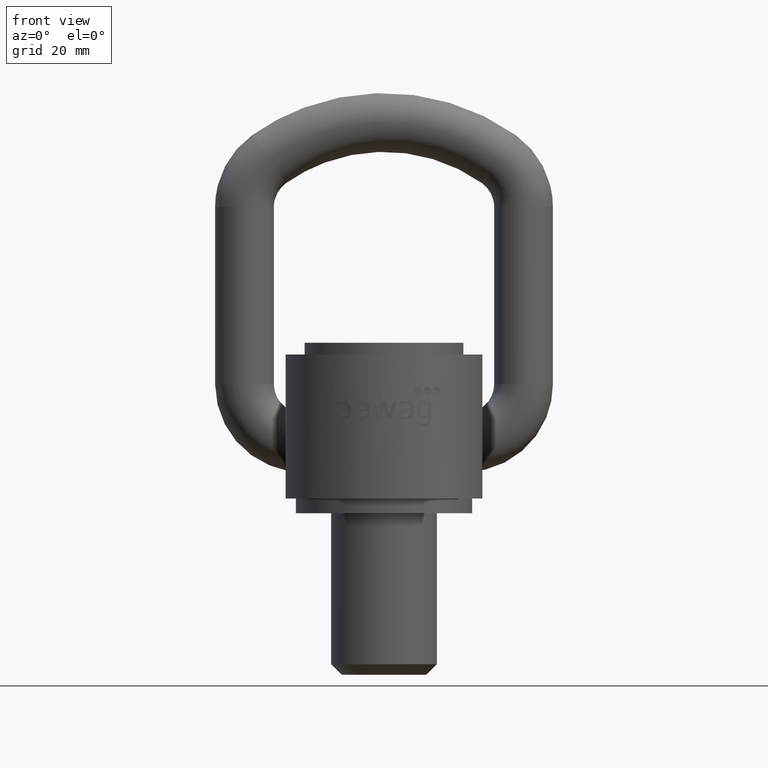
[diagram: clean part render]
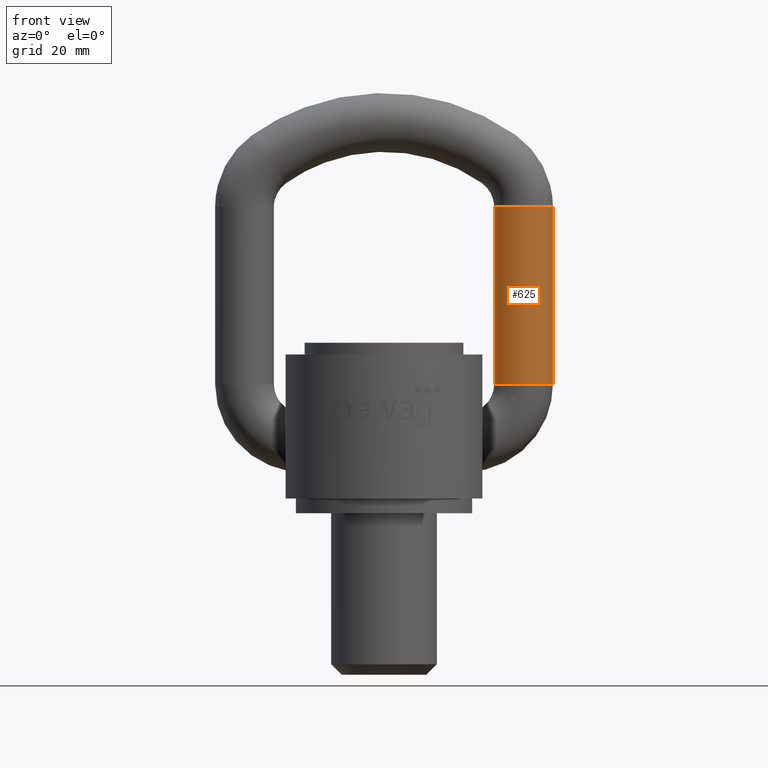
[diagram: same view with one face highlighted and labeled with its STEP entity id]
A machine part, front view. The second image highlights one B-rep face of the part: STEP entity #625.
In plain terms, the highlighted cylindrical surface (bore or boss wall) has radius 10 mm, axis along (0, 0, -1).
Its self-contained STEP definition (entity closure, byte-faithful):
#219=CYLINDRICAL_SURFACE('',#2381,10.);
#290=FACE_BOUND('',#930,.T.);
#291=FACE_BOUND('',#931,.T.);
#322=CIRCLE('',#2367,10.);
#328=CIRCLE('',#2379,10.);
#625=ADVANCED_FACE('',(#290,#291),#219,.T.);
#930=EDGE_LOOP('',(#1504));
#931=EDGE_LOOP('',(#1505));
#1504=ORIENTED_EDGE('',*,*,#1991,.F.);
#1505=ORIENTED_EDGE('',*,*,#1985,.T.);
#1698=VERTEX_POINT('',#4847);
#1704=VERTEX_POINT('',#4865);
#1985=EDGE_CURVE('',#1698,#1698,#322,.T.);
#1991=EDGE_CURVE('',#1704,#1704,#328,.T.);
#2367=AXIS2_PLACEMENT_3D('',#4846,#2763,#2764);
#2379=AXIS2_PLACEMENT_3D('',#4864,#2787,#2788);
#2381=AXIS2_PLACEMENT_3D('',#4867,#2791,#2792);
#2763=DIRECTION('',(1.84331036808373E-15,0.,1.));
#2764=DIRECTION('',(1.,0.,-2.08166817117217E-15));
#2787=DIRECTION('',(1.84331036808373E-15,0.,1.));
#2788=DIRECTION('',(1.,0.,-1.38777878078145E-15));
#2791=DIRECTION('',(0.,0.,-1.));
#2792=DIRECTION('',(-1.,0.,0.));
#4846=CARTESIAN_POINT('',(47.5,33.,39.));
#4847=CARTESIAN_POINT('',(57.5,33.,39.));
#4864=CARTESIAN_POINT('',(47.5,33.,99.2298334620741));
#4865=CARTESIAN_POINT('',(57.5,33.,99.2298334620741));
#4867=CARTESIAN_POINT('',(47.5,33.,99.2298334620741));